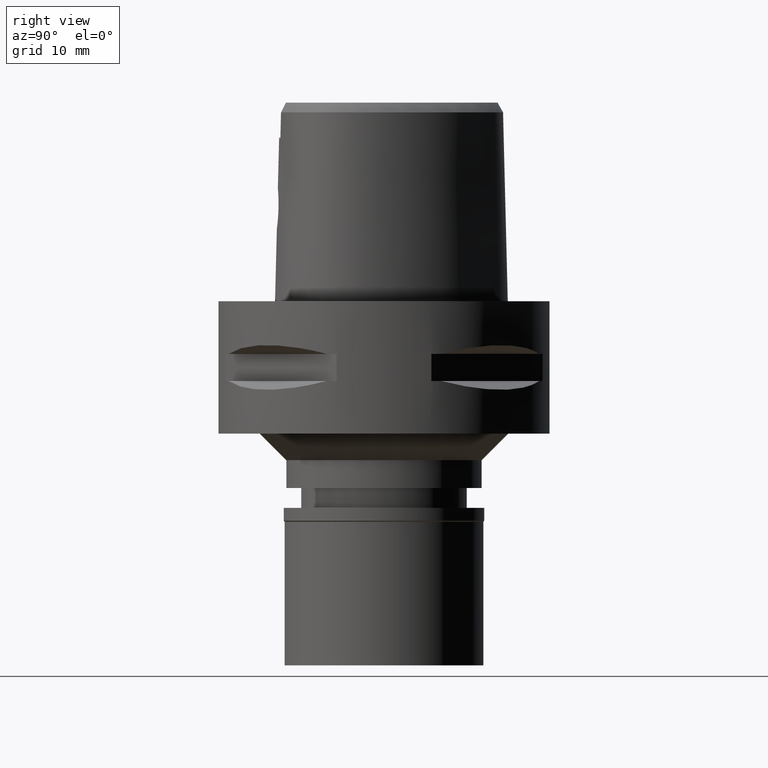
[diagram: clean part render]
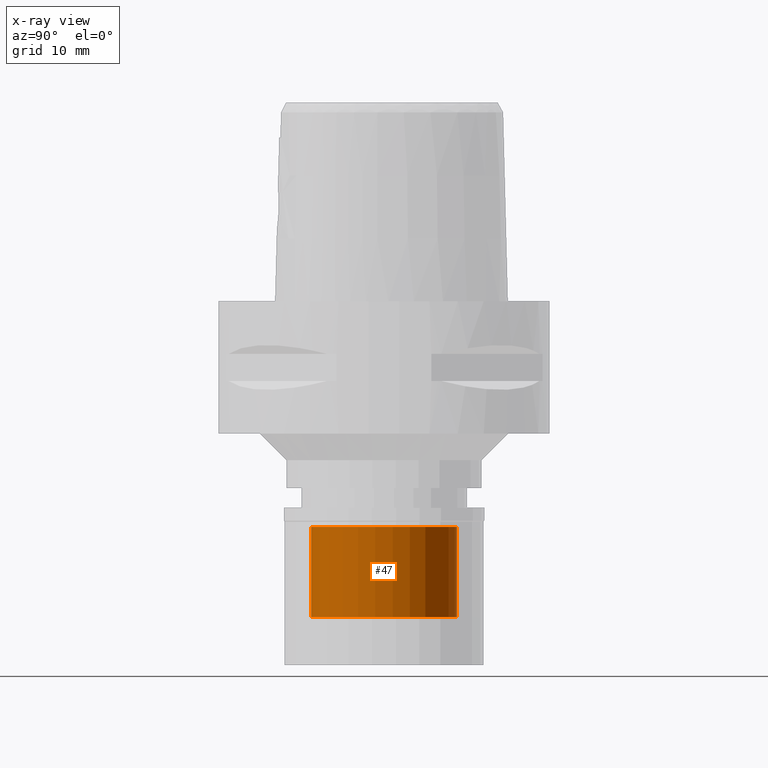
[diagram: x-ray — body ghosted, one internal face saturated and labeled with its STEP entity id]
A machine part, right view, then the same camera in x-ray: the body is ghosted and one INTERNAL B-rep face — a face not visible from any outside direction — is saturated and labeled: STEP entity #47.
In plain terms, the highlighted cylindrical surface (partial cylindrical patch) has radius 11 mm, axis along (0, 0, -1).
Its self-contained STEP definition (entity closure, byte-faithful):
#47 = ADVANCED_FACE ( 'NONE', ( #1964 ), #4169, .F. ) ;
#108 = EDGE_CURVE ( 'NONE', #1791, #2437, #2819, .T. ) ;
#156 = EDGE_CURVE ( 'NONE', #2476, #2437, #2817, .T. ) ;
#173 = CARTESIAN_POINT ( 'NONE',  ( 0.0000000000000000000, -11.00000000000000000, -2.899999999999999911 ) ) ;
#253 = CARTESIAN_POINT ( 'NONE',  ( 0.0000000000000000000, 0.0000000000000000000, -2.899999999999999911 ) ) ;
#270 = ORIENTED_EDGE ( 'NONE', *, *, #156, .F. ) ;
#280 = DIRECTION ( 'NONE',  ( 0.0000000000000000000, -1.000000000000000000, 0.0000000000000000000 ) ) ;
#445 = DIRECTION ( 'NONE',  ( 0.0000000000000000000, 0.0000000000000000000, -1.000000000000000000 ) ) ;
#588 = DIRECTION ( 'NONE',  ( 0.0000000000000000000, 0.0000000000000000000, 1.000000000000000000 ) ) ;
#891 = DIRECTION ( 'NONE',  ( 0.0000000000000000000, 0.0000000000000000000, 1.000000000000000000 ) ) ;
#1059 = DIRECTION ( 'NONE',  ( 0.0000000000000000000, 0.0000000000000000000, -1.000000000000000000 ) ) ;
#1281 = EDGE_CURVE ( 'NONE', #1400, #1791, #2362, .T. ) ;
#1354 = ORIENTED_EDGE ( 'NONE', *, *, #4461, .T. ) ;
#1400 = VERTEX_POINT ( 'NONE', #3818 ) ;
#1513 = CARTESIAN_POINT ( 'NONE',  ( 0.0000000000000000000, 0.0000000000000000000, -16.50000000000000000 ) ) ;
#1530 = CARTESIAN_POINT ( 'NONE',  ( 0.0000000000000000000, 11.00000000000000000, -16.50000000000000000 ) ) ;
#1573 = CIRCLE ( 'NONE', #2645, 11.00000000000000000 ) ;
#1582 = CARTESIAN_POINT ( 'NONE',  ( 0.0000000000000000000, 0.0000000000000000000, 0.0000000000000000000 ) ) ;
#1791 = VERTEX_POINT ( 'NONE', #173 ) ;
#1886 = EDGE_LOOP ( 'NONE', ( #1354, #4660, #4556, #270 ) ) ;
#1964 = FACE_OUTER_BOUND ( 'NONE', #1886, .T. ) ;
#2200 = AXIS2_PLACEMENT_3D ( 'NONE', #1582, #445, #4545 ) ;
#2362 = LINE ( 'NONE', #4205, #3837 ) ;
#2437 = VERTEX_POINT ( 'NONE', #3368 ) ;
#2476 = VERTEX_POINT ( 'NONE', #1530 ) ;
#2645 = AXIS2_PLACEMENT_3D ( 'NONE', #1513, #1059, #4029 ) ;
#2658 = AXIS2_PLACEMENT_3D ( 'NONE', #253, #588, #280 ) ;
#2817 = LINE ( 'NONE', #3571, #3290 ) ;
#2819 = CIRCLE ( 'NONE', #2658, 11.00000000000000000 ) ;
#3290 = VECTOR ( 'NONE', #3495, 1000.000000000000000 ) ;
#3368 = CARTESIAN_POINT ( 'NONE',  ( 0.0000000000000000000, 11.00000000000000000, -2.899999999999999911 ) ) ;
#3495 = DIRECTION ( 'NONE',  ( 0.0000000000000000000, 0.0000000000000000000, 1.000000000000000000 ) ) ;
#3571 = CARTESIAN_POINT ( 'NONE',  ( 0.0000000000000000000, 11.00000000000000000, -16.50000000000000000 ) ) ;
#3818 = CARTESIAN_POINT ( 'NONE',  ( 0.0000000000000000000, -11.00000000000000000, -16.50000000000000000 ) ) ;
#3837 = VECTOR ( 'NONE', #891, 1000.000000000000000 ) ;
#4029 = DIRECTION ( 'NONE',  ( 0.0000000000000000000, 1.000000000000000000, 0.0000000000000000000 ) ) ;
#4169 = CYLINDRICAL_SURFACE ( 'NONE', #2200, 11.00000000000000000 ) ;
#4205 = CARTESIAN_POINT ( 'NONE',  ( 0.0000000000000000000, -11.00000000000000000, -16.50000000000000000 ) ) ;
#4461 = EDGE_CURVE ( 'NONE', #2476, #1400, #1573, .T. ) ;
#4545 = DIRECTION ( 'NONE',  ( 0.0000000000000000000, -1.000000000000000000, 0.0000000000000000000 ) ) ;
#4556 = ORIENTED_EDGE ( 'NONE', *, *, #108, .T. ) ;
#4660 = ORIENTED_EDGE ( 'NONE', *, *, #1281, .T. ) ;